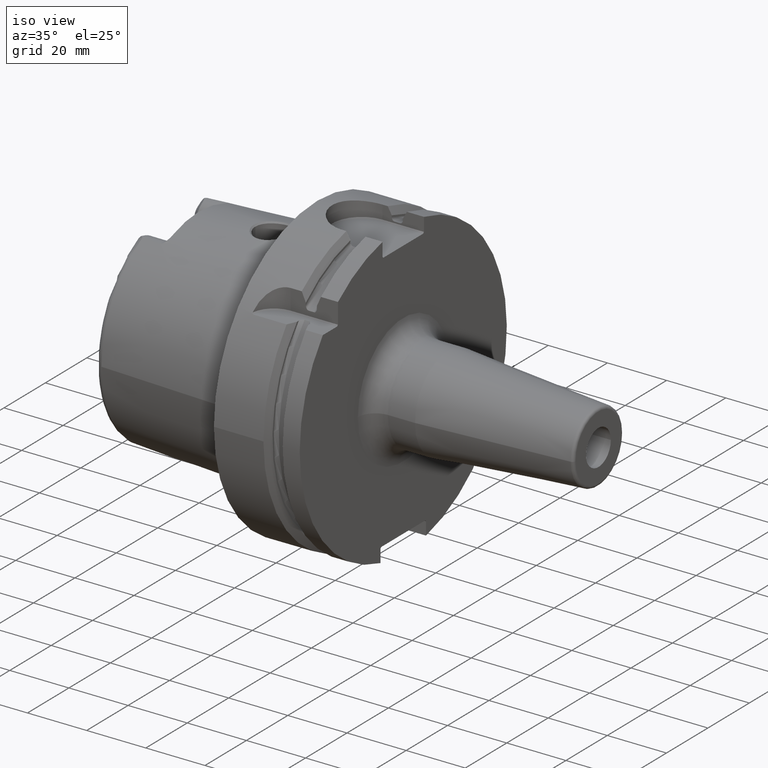
[diagram: clean part render]
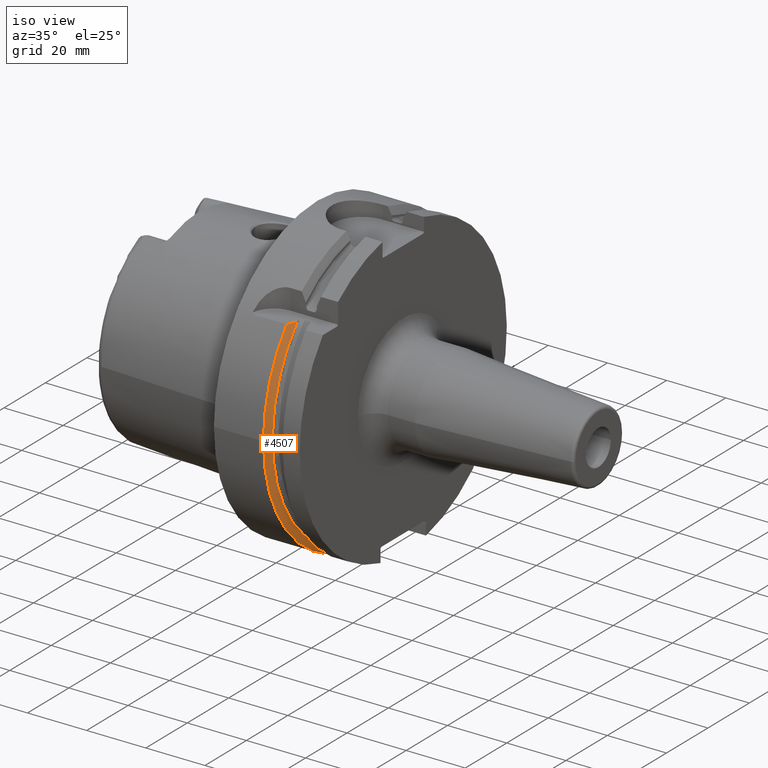
[diagram: same view with one face highlighted and labeled with its STEP entity id]
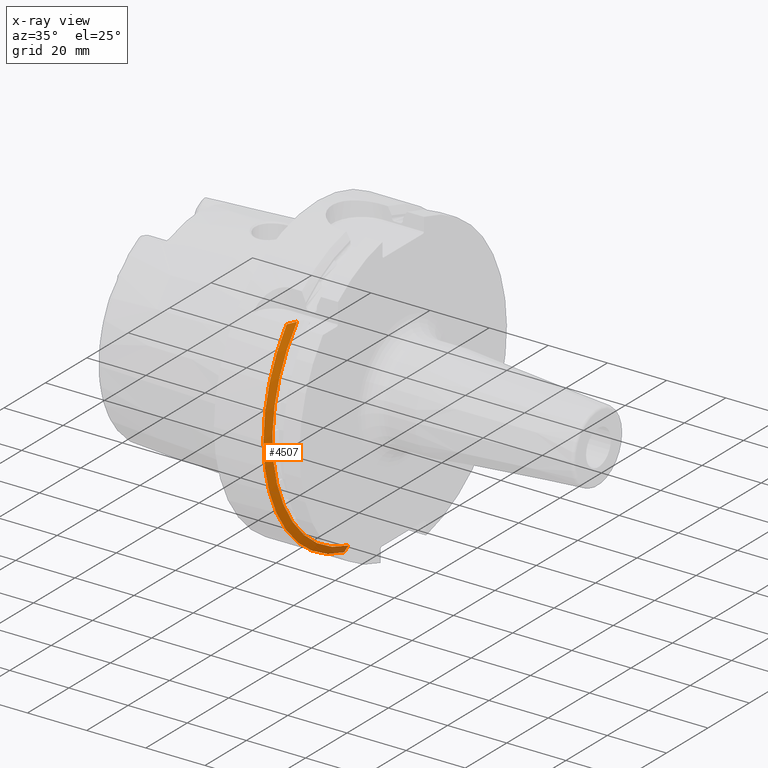
[diagram: x-ray of the same camera — body ghosted, the highlighted face saturated]
A machine part, iso view. The second image highlights one B-rep face of the part: STEP entity #4507.
The next image is the same camera in x-ray: the body ghosted, the highlighted face saturated — about 3% of this face is hidden behind the body in this view.
In plain terms, the highlighted conical surface has half-angle 60 deg.
Its self-contained STEP definition (entity closure, byte-faithful):
#946=CARTESIAN_POINT('',(1.675240473581E1,0.E0,0.E0));
#947=DIRECTION('',(1.E0,0.E0,0.E0));
#948=DIRECTION('',(0.E0,-7.765951326142E-1,6.3E-1));
#949=AXIS2_PLACEMENT_3D('',#946,#947,#948);
#1202=CARTESIAN_POINT('',(1.675240473581E1,0.E0,0.E0));
#1203=DIRECTION('',(1.E0,0.E0,0.E0));
#1204=DIRECTION('',(0.E0,-1.E0,0.E0));
#1205=AXIS2_PLACEMENT_3D('',#1202,#1203,#1204);
#1312=CARTESIAN_POINT('',(1.8125E1,-3.571640491003E1,3.15E1));
#1313=CARTESIAN_POINT('',(1.798074425159E1,-3.604955434192E1,3.15E1));
#1314=CARTESIAN_POINT('',(1.768677523913E1,-3.672437326077E1,3.15E1));
#1315=CARTESIAN_POINT('',(1.722989798814E1,-3.776083400964E1,3.15E1));
#1316=CARTESIAN_POINT('',(1.691349063877E1,-3.847048452534E1,3.15E1));
#1317=CARTESIAN_POINT('',(1.675240473581E1,-3.882975663071E1,3.15E1));
#1319=CARTESIAN_POINT('',(1.8125E1,0.E0,0.E0));
#1320=DIRECTION('',(1.E0,0.E0,0.E0));
#1321=DIRECTION('',(0.E0,-7.499886285467E-1,6.614507215588E-1));
#1322=AXIS2_PLACEMENT_3D('',#1319,#1320,#1321);
#1324=CARTESIAN_POINT('',(1.8125E1,-1.1E1,-4.633477721644E1));
#1325=CARTESIAN_POINT('',(1.797681299591E1,-1.1E1,-4.659857839127E1));
#1326=CARTESIAN_POINT('',(1.767755818119E1,-1.1E1,-4.713106867413E1));
#1327=CARTESIAN_POINT('',(1.722011036236E1,-1.1E1,-4.794432689775E1));
#1328=CARTESIAN_POINT('',(1.690927619315E1,-1.1E1,-4.849646015371E1));
#1329=CARTESIAN_POINT('',(1.675240473581E1,-1.1E1,-4.877499359303E1));
#2912=CARTESIAN_POINT('',(1.675240473581E1,-5.E1,-1.020538999289E-14));
#2913=VERTEX_POINT('',#2912);
#3003=CARTESIAN_POINT('',(1.675240473581E1,-1.1E1,-4.877499359303E1));
#3005=VERTEX_POINT('',#3003);
#3014=CARTESIAN_POINT('',(1.8125E1,-1.1E1,-4.633477721644E1));
#3016=VERTEX_POINT('',#3014);
#3064=CARTESIAN_POINT('',(1.8125E1,-3.571640491003E1,3.15E1));
#3066=VERTEX_POINT('',#3064);
#3084=VERTEX_POINT('',#1317);
#4494=CARTESIAN_POINT('',(1.743870236790E1,0.E0,0.E0));
#4495=DIRECTION('',(-1.E0,0.E0,0.E0));
#4496=DIRECTION('',(0.E0,1.E0,0.E0));
#4497=AXIS2_PLACEMENT_3D('',#4494,#4495,#4496);
#4498=CONICAL_SURFACE('',#4497,4.881129763210E1,6.E1);
#4499=ORIENTED_EDGE('',*,*,#4278,.F.);
#4501=ORIENTED_EDGE('',*,*,#4500,.T.);
#4502=ORIENTED_EDGE('',*,*,#4448,.T.);
#4503=ORIENTED_EDGE('',*,*,#4346,.F.);
#4504=ORIENTED_EDGE('',*,*,#4142,.F.);
#4505=EDGE_LOOP('',(#4499,#4501,#4502,#4503,#4504));
#4506=FACE_OUTER_BOUND('',#4505,.F.);
#4507=ADVANCED_FACE('',(#4506),#4498,.T.);
#950=CIRCLE('',#949,5.E1);
#1206=CIRCLE('',#1205,5.E1);
#1318=B_SPLINE_CURVE_WITH_KNOTS('',3,(#1312,#1313,#1314,#1315,#1316,#1317),
.UNSPECIFIED.,.F.,.F.,(4,1,1,4),(0.E0,3.333333333333E-1,6.666666666667E-1,1.E0),
.UNSPECIFIED.);
#1323=CIRCLE('',#1322,4.762259526419E1);
#1330=B_SPLINE_CURVE_WITH_KNOTS('',3,(#1324,#1325,#1326,#1327,#1328,#1329),
.UNSPECIFIED.,.F.,.F.,(4,1,1,4),(0.E0,3.333333333333E-1,6.666666666667E-1,1.E0),
.UNSPECIFIED.);
#4142=EDGE_CURVE('',#3084,#2913,#950,.T.);
#4278=EDGE_CURVE('',#3066,#3084,#1318,.T.);
#4346=EDGE_CURVE('',#2913,#3005,#1206,.T.);
#4448=EDGE_CURVE('',#3016,#3005,#1330,.T.);
#4500=EDGE_CURVE('',#3066,#3016,#1323,.T.);